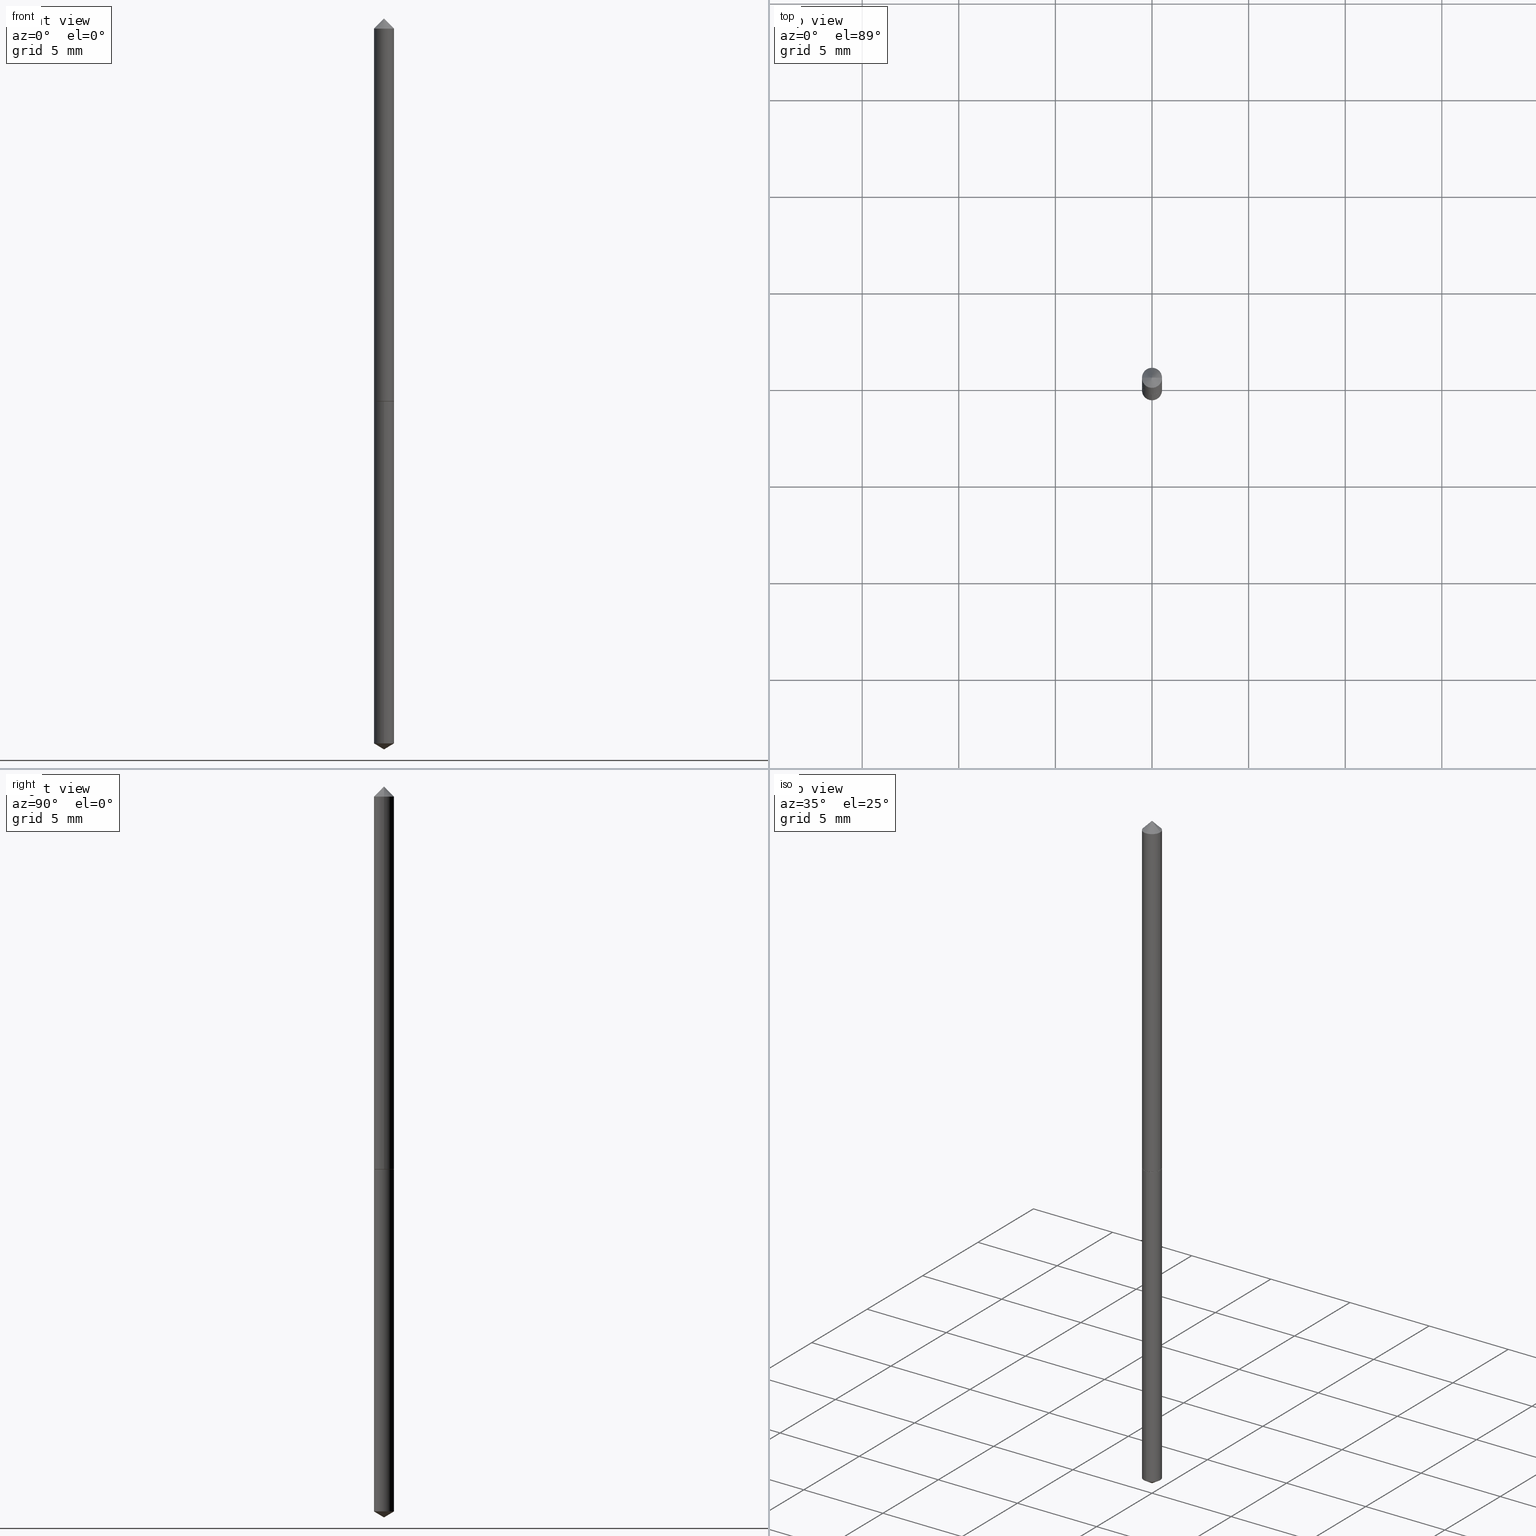
[diagram: canonical four-view strip — front | top / right | iso, engineering-drawing reading convention]
A machine part, canonical four-view strip (front | top / right | iso — engineering-drawing reading convention). The complete STEP part file that produces these views, byte-faithful:
ISO-10303-21;
HEADER;
FILE_DESCRIPTION (( 'STEP AP203' ),
    '1' );
FILE_NAME ('51059.STEP',
    '2024-04-22T18:20:51',
    ( '' ),
    ( '' ),
    'SwSTEP 2.0',
    'SolidWorks 2023',
    '' );
FILE_SCHEMA (( 'CONFIG_CONTROL_DESIGN' ));
ENDSEC;

DATA;
#1 = ORIENTED_EDGE ( 'NONE', *, *, #162, .F. ) ;
#2 = CARTESIAN_POINT ( 'NONE',  ( 0.02050000000000000433, -2.522595267314175209E-16, -0.03125000000000020123 ) ) ;
#3 = FACE_OUTER_BOUND ( 'NONE', #92, .T. ) ;
#4 = VECTOR ( 'NONE', #86, 39.37007874015748143 ) ;
#5 = DIRECTION ( 'NONE',  ( 1.000000000000000000, 0.000000000000000000, 0.000000000000000000 ) ) ;
#6 = DIRECTION ( 'NONE',  ( 6.982962677686265922E-15, 1.000000000000000000, -3.491355326581580179E-15 ) ) ;
#7 = ORIENTED_EDGE ( 'NONE', *, *, #275, .T. ) ;
#8 = APPROVAL_PERSON_ORGANIZATION ( #260, #11, #235 ) ;
#9 =( LENGTH_UNIT ( ) NAMED_UNIT ( * ) SI_UNIT ( $, .METRE. ) );
#10 = ORIENTED_EDGE ( 'NONE', *, *, #248, .T. ) ;
#11 = APPROVAL ( #181, 'UNSPECIFIED' ) ;
#12 = AXIS2_PLACEMENT_3D ( 'NONE', #42, #97, #147 ) ;
#13 = VECTOR ( 'NONE', #362, 39.37007874015748143 ) ;
#14 = CC_DESIGN_PERSON_AND_ORGANIZATION_ASSIGNMENT ( #32, #203, ( #50 ) ) ;
#15 = AXIS2_PLACEMENT_3D ( 'NONE', #267, #49, #45 ) ;
#16 = APPROVAL_PERSON_ORGANIZATION ( #337, #273, #84 ) ;
#17 = EDGE_CURVE ( 'NONE', #228, #254, #83, .T. ) ;
#18 = DIRECTION ( 'NONE',  ( 1.000000000000000000, -6.982962677686267499E-15, 0.000000000000000000 ) ) ;
#19 = CALENDAR_DATE ( 2024, 22, 4 ) ;
#20 = DIRECTION ( 'NONE',  ( -2.445468806185136597E-29, 3.491481338843145583E-15, 1.000000000000000000 ) ) ;
#21 = VECTOR ( 'NONE', #360, 39.37007874015748143 ) ;
#22 = CARTESIAN_POINT ( 'NONE',  ( 3.638142102105486561E-29, -5.194127398154383718E-15, -1.487682357309935588 ) ) ;
#23 = CC_DESIGN_APPROVAL ( #273, ( #210 ) ) ;
#24 = ADVANCED_FACE ( 'NONE', ( #282 ), #68, .T. ) ;
#25 = CARTESIAN_POINT ( 'NONE',  ( -1.431507348925320587E-16, -0.02050000000000519809, -1.487682357309935588 ) ) ;
#26 = VERTEX_POINT ( 'NONE', #182 ) ;
#27 = CARTESIAN_POINT ( 'NONE',  ( -0.02050000000000000433, 3.404194305371951064E-17, -0.03125000000000020123 ) ) ;
#28 = APPLICATION_PROTOCOL_DEFINITION ( 'international standard', 'config_control_design', 1994, #264 ) ;
#29 = LOCAL_TIME ( 14, 20, 51.00000000000000000, #34 ) ;
#30 = PRODUCT_DEFINITION_SHAPE ( 'NONE', 'NONE',  #210 ) ;
#31 = ORIENTED_EDGE ( 'NONE', *, *, #220, .F. ) ;
#32 = PERSON_AND_ORGANIZATION ( #287, #133 ) ;
#33 = CARTESIAN_POINT ( 'NONE',  ( 1.456612608308398713E-16, 0.02049999999999723918, -0.7910000000000002585 ) ) ;
#34 = COORDINATED_UNIVERSAL_TIME_OFFSET ( 5, 0, .BEHIND. ) ;
#35 = AXIS2_PLACEMENT_3D ( 'NONE', #77, #191, #301 ) ;
#36 = EDGE_LOOP ( 'NONE', ( #10, #342, #1, #114 ) ) ;
#37 = ORIENTED_EDGE ( 'NONE', *, *, #150, .F. ) ;
#38 = CC_DESIGN_SECURITY_CLASSIFICATION ( #126, ( #50 ) ) ;
#39 = DIRECTION ( 'NONE',  ( 1.000000000000000000, -6.982962677686263555E-15, 0.000000000000000000 ) ) ;
#40 = CARTESIAN_POINT ( 'NONE',  ( -9.261349818561514846E-28, 1.322178014518137871E-13, 37.87007874015748143 ) ) ;
#41 = APPLICATION_CONTEXT ( 'configuration controlled 3d designs of mechanical parts and assemblies' ) ;
#42 = CARTESIAN_POINT ( 'NONE',  ( 3.638142102105486561E-29, -5.194127398154383718E-15, -1.487682357309935588 ) ) ;
#43 = EDGE_CURVE ( 'NONE', #26, #319, #166, .T. ) ;
#44 = CC_DESIGN_APPROVAL ( #11, ( #126 ) ) ;
#45 = DIRECTION ( 'NONE',  ( 1.000000000000000000, -6.982962677686276966E-15, 0.000000000000000000 ) ) ;
#46 = DIRECTION ( 'NONE',  ( -2.445556800077080813E-29, 3.491355326581580179E-15, 1.000000000000000000 ) ) ;
#47 = APPROVAL_DATE_TIME ( #231, #11 ) ;
#48 = CARTESIAN_POINT ( 'NONE',  ( 7.642090019328601786E-31, -1.091087918388490144E-16, -0.03125000000000020123 ) ) ;
#49 = DIRECTION ( 'NONE',  ( -2.445468806185136597E-29, 3.491481338843145583E-15, 1.000000000000000000 ) ) ;
#50 = PRODUCT_DEFINITION_FORMATION_WITH_SPECIFIED_SOURCE ( 'ANY', '', #308, .NOT_KNOWN. ) ;
#51 = ORIENTED_EDGE ( 'NONE', *, *, #237, .F. ) ;
#52 = CARTESIAN_POINT ( 'NONE',  ( 1.456612608308570290E-16, 0.02049999999999723918, -0.7910000000000002585 ) ) ;
#53 = PERSON_AND_ORGANIZATION_ROLE ( 'design_owner' ) ;
#54 = PERSON_AND_ORGANIZATION ( #287, #133 ) ;
#55 = AXIS2_PLACEMENT_3D ( 'NONE', #40, #65, #314 ) ;
#56 = AXIS2_PLACEMENT_3D ( 'NONE', #276, #332, #5 ) ;
#57 = ORIENTED_EDGE ( 'NONE', *, *, #134, .F. ) ;
#58 = PERSON_AND_ORGANIZATION ( #287, #133 ) ;
#59 = EDGE_CURVE ( 'NONE', #230, #143, #349, .T. ) ;
#60 = CYLINDRICAL_SURFACE ( 'NONE', #204, 0.02050000000000005290 ) ;
#61 = COORDINATED_UNIVERSAL_TIME_OFFSET ( 5, 0, .BEHIND. ) ;
#62 = DIRECTION ( 'NONE',  ( -2.445556800077080813E-29, 3.491355326581580179E-15, 1.000000000000000000 ) ) ;
#63 = VERTEX_POINT ( 'NONE', #240 ) ;
#64 = ORIENTED_EDGE ( 'NONE', *, *, #363, .F. ) ;
#65 = DIRECTION ( 'NONE',  ( -2.445556800077080813E-29, 3.491355326581580179E-15, 1.000000000000000000 ) ) ;
#66 = ADVANCED_FACE ( 'NONE', ( #357 ), #322, .T. ) ;
#67 = PERSON_AND_ORGANIZATION ( #287, #133 ) ;
#68 = CYLINDRICAL_SURFACE ( 'NONE', #223, 0.02050000000000000086 ) ;
#69 = CARTESIAN_POINT ( 'NONE',  ( 1.934365825692443391E-29, -2.761761739024928692E-15, -0.7910000000000001474 ) ) ;
#70 = AXIS2_PLACEMENT_3D ( 'NONE', #268, #245, #221 ) ;
#71 = PLANE ( 'NONE',  #324 ) ;
#72 = LINE ( 'NONE', #215, #98 ) ;
#73 = DIRECTION ( 'NONE',  ( -2.445556800077080813E-29, 3.491355326581580179E-15, 1.000000000000000000 ) ) ;
#74 = ORIENTED_EDGE ( 'NONE', *, *, #275, .F. ) ;
#75 = AXIS2_PLACEMENT_3D ( 'NONE', #306, #280, #175 ) ;
#76 = ORIENTED_EDGE ( 'NONE', *, *, #325, .F. ) ;
#77 = CARTESIAN_POINT ( 'NONE',  ( 1.934365825692443391E-29, -2.761761739024928692E-15, -0.7910000000000001474 ) ) ;
#78 = CC_DESIGN_DATE_AND_TIME_ASSIGNMENT ( #303, #173, ( #210 ) ) ;
#79 = VERTEX_POINT ( 'NONE', #333 ) ;
#80 = ADVANCED_FACE ( 'NONE', ( #335 ), #60, .T. ) ;
#81 = EDGE_LOOP ( 'NONE', ( #74, #226, #95 ) ) ;
#82 = APPROVAL_DATE_TIME ( #140, #229 ) ;
#83 = CIRCLE ( 'NONE', #75, 0.02000000000000005940 ) ;
#84 = APPROVAL_ROLE ( '' ) ;
#85 = EDGE_LOOP ( 'NONE', ( #189, #358 ) ) ;
#86 = DIRECTION ( 'NONE',  ( -0.7071067811866441621, 7.493145998870704414E-15, 0.7071067811864508723 ) ) ;
#87 = CARTESIAN_POINT ( 'NONE',  ( -0.02050000000000005290, 1.456612608308209140E-16, -1.008381693502258247E-30 ) ) ;
#88 = ADVANCED_BREP_SHAPE_REPRESENTATION ( '51059', ( #209, #211, #56 ), #201 ) ;
#89 = CIRCLE ( 'NONE', #343, 0.02050000000000000086 ) ;
#90 = AXIS2_PLACEMENT_3D ( 'NONE', #326, #20, #271 ) ;
#91 = ORIENTED_EDGE ( 'NONE', *, *, #115, .F. ) ;
#92 = EDGE_LOOP ( 'NONE', ( #64, #156, #192, #51 ) ) ;
#93 = DIRECTION ( 'NONE',  ( -2.445468806185136597E-29, 3.491481338843145583E-15, 1.000000000000000000 ) ) ;
#94 = ADVANCED_FACE ( 'NONE', ( #259 ), #168, .T. ) ;
#95 = ORIENTED_EDGE ( 'NONE', *, *, #256, .T. ) ;
#96 = DIRECTION ( 'NONE',  ( 1.000000000000000000, -6.982962677686276966E-15, 0.000000000000000000 ) ) ;
#97 = DIRECTION ( 'NONE',  ( -2.445556800077080813E-29, 3.491355326581580179E-15, 1.000000000000000000 ) ) ;
#98 = VECTOR ( 'NONE', #323, 39.37007874015748143 ) ;
#99 = ORIENTED_EDGE ( 'NONE', *, *, #363, .T. ) ;
#100 = DIRECTION ( 'NONE',  ( 0.7071067811866441621, -2.468850131083269169E-15, 0.7071067811864508723 ) ) ;
#101 = CARTESIAN_POINT ( 'NONE',  ( 5.706722458559400558E-29, 2.640467668446126357E-15, -0.7910000000000001474 ) ) ;
#102 = DIRECTION ( 'NONE',  ( 1.000000000000000000, -6.982962677686276966E-15, 0.000000000000000000 ) ) ;
#103 = DIRECTION ( 'NONE',  ( 2.445468806185136597E-29, -3.491481338843145583E-15, -1.000000000000000000 ) ) ;
#104 = ORIENTED_EDGE ( 'NONE', *, *, #115, .T. ) ;
#105 = FACE_OUTER_BOUND ( 'NONE', #120, .T. ) ;
#106 = ORIENTED_EDGE ( 'NONE', *, *, #118, .F. ) ;
#107 = APPROVAL_DATE_TIME ( #281, #273 ) ;
#108 = ADVANCED_FACE ( 'NONE', ( #261 ), #200, .T. ) ;
#109 = FACE_OUTER_BOUND ( 'NONE', #85, .T. ) ;
#110 = APPLICATION_PROTOCOL_DEFINITION ( 'international standard', 'config_control_design', 1994, #41 ) ;
#111 = LOCAL_TIME ( 14, 20, 51.00000000000000000, #117 ) ;
#112 = DIRECTION ( 'NONE',  ( 1.000000000000000000, -6.982962677686265922E-15, 4.876176775795935793E-29 ) ) ;
#113 = DIRECTION ( 'NONE',  ( 1.000000000000000000, -6.982962677686265922E-15, 4.876176775795935793E-29 ) ) ;
#114 = ORIENTED_EDGE ( 'NONE', *, *, #339, .F. ) ;
#115 = EDGE_CURVE ( 'NONE', #136, #26, #187, .T. ) ;
#116 = ORIENTED_EDGE ( 'NONE', *, *, #59, .F. ) ;
#117 = COORDINATED_UNIVERSAL_TIME_OFFSET ( 5, 0, .BEHIND. ) ;
#118 = EDGE_CURVE ( 'NONE', #254, #228, #288, .T. ) ;
#119 = SHAPE_DEFINITION_REPRESENTATION ( #30, #88 ) ;
#120 = EDGE_LOOP ( 'NONE', ( #116, #279, #179, #233 ) ) ;
#121 = CLOSED_SHELL ( 'NONE', ( #144, #80, #263, #284, #213, #345, #94 ) ) ;
#122 = DATE_AND_TIME ( #295, #111 ) ;
#123 = FACE_OUTER_BOUND ( 'NONE', #36, .T. ) ;
#124 = SECURITY_CLASSIFICATION_LEVEL ( 'unclassified' ) ;
#125 = DIRECTION ( 'NONE',  ( -2.445468806185136597E-29, 3.491481338843145583E-15, 1.000000000000000000 ) ) ;
#126 = SECURITY_CLASSIFICATION ( '', '', #124 ) ;
#127 = DIRECTION ( 'NONE',  ( -2.445468806185136597E-29, 3.491481338843145583E-15, 1.000000000000000000 ) ) ;
#128 = DIRECTION ( 'NONE',  ( -2.445556800077080813E-29, 3.491355326581580179E-15, 1.000000000000000000 ) ) ;
#129 = DIRECTION ( 'NONE',  ( -2.445468806185136877E-29, 3.491481338843145188E-15, 1.000000000000000000 ) ) ;
#130 = EDGE_LOOP ( 'NONE', ( #202, #329, #31, #163 ) ) ;
#131 = DIRECTION ( 'NONE',  ( 2.445556800077080533E-29, -3.491355326581580179E-15, -1.000000000000000000 ) ) ;
#132 = EDGE_LOOP ( 'NONE', ( #106, #247 ) ) ;
#133 = ORGANIZATION ( 'UNSPECIFIED', 'UNSPECIFIED', '' ) ;
#134 = EDGE_CURVE ( 'NONE', #26, #266, #304, .T. ) ;
#135 = PLANE ( 'NONE',  #359 ) ;
#136 = VERTEX_POINT ( 'NONE', #195 ) ;
#137 = DIRECTION ( 'NONE',  ( 6.090539988449838389E-15, 0.8571673007021223256, 0.5150380749100373912 ) ) ;
#138 = LENGTH_MEASURE_WITH_UNIT ( LENGTH_MEASURE( 0.02539999999999999897 ), #9 );
#139 = ORIENTED_EDGE ( 'NONE', *, *, #339, .T. ) ;
#140 = DATE_AND_TIME ( #222, #29 ) ;
#141 = LINE ( 'NONE', #340, #243 ) ;
#142 = ADVANCED_FACE ( 'NONE', ( #109 ), #135, .F. ) ;
#143 = VERTEX_POINT ( 'NONE', #294 ) ;
#144 = ADVANCED_FACE ( 'NONE', ( #172 ), #285, .T. ) ;
#145 = ORIENTED_EDGE ( 'NONE', *, *, #118, .T. ) ;
#146 = CIRCLE ( 'NONE', #305, 0.02050000000000009454 ) ;
#147 = DIRECTION ( 'NONE',  ( -6.982962677686266711E-15, -1.000000000000000000, 0.000000000000000000 ) ) ;
#148 = DIRECTION ( 'NONE',  ( -2.445468806185136597E-29, 3.491481338843145583E-15, 1.000000000000000000 ) ) ;
#149 = VERTEX_POINT ( 'NONE', #161 ) ;
#150 = EDGE_CURVE ( 'NONE', #136, #266, #158, .T. ) ;
#151 = ORIENTED_EDGE ( 'NONE', *, *, #134, .T. ) ;
#152 = DIRECTION ( 'NONE',  ( -2.445556800077080813E-29, 3.491355326581580179E-15, 1.000000000000000000 ) ) ;
#153 = EDGE_LOOP ( 'NONE', ( #37, #104, #348 ) ) ;
#154 = VECTOR ( 'NONE', #137, 39.37007874015748854 ) ;
#155 = CARTESIAN_POINT ( 'NONE',  ( -0.02000000000000005940, -2.617003964698796539E-15, -0.7909999999999999254 ) ) ;
#156 = ORIENTED_EDGE ( 'NONE', *, *, #17, .T. ) ;
#157 = DIRECTION ( 'NONE',  ( -6.982962677686266711E-15, -1.000000000000000000, 6.663043886986007407E-15 ) ) ;
#158 = LINE ( 'NONE', #297, #21 ) ;
#159 = CARTESIAN_POINT ( 'NONE',  ( 3.668336420790877591E-29, -5.237032989872371058E-15, -1.500000000000000222 ) ) ;
#160 = CIRCLE ( 'NONE', #361, 0.02050000000000000433 ) ;
#161 = CARTESIAN_POINT ( 'NONE',  ( -1.431507348925491178E-16, -0.02050000000000276254, -0.7909999999999999254 ) ) ;
#162 = EDGE_CURVE ( 'NONE', #149, #319, #89, .T. ) ;
#163 = ORIENTED_EDGE ( 'NONE', *, *, #177, .F. ) ;
#164 = LINE ( 'NONE', #27, #250 ) ;
#165 = DIRECTION ( 'NONE',  ( -2.445556800077080813E-29, 3.491355326581580179E-15, 1.000000000000000000 ) ) ;
#166 = LINE ( 'NONE', #33, #238 ) ;
#167 = APPROVAL_STATUS ( 'not_yet_approved' ) ;
#168 = CONICAL_SURFACE ( 'NONE', #317, 0.02050000000000000433, 0.7853981633974450594 ) ;
#169 = APPROVAL_PERSON_ORGANIZATION ( #54, #229, #278 ) ;
#170 = APPROVAL_STATUS ( 'not_yet_approved' ) ;
#171 = PERSON_AND_ORGANIZATION_ROLE ( 'creator' ) ;
#172 = FACE_OUTER_BOUND ( 'NONE', #296, .T. ) ;
#173 = DATE_TIME_ROLE ( 'creation_date' ) ;
#174 = CLOSED_SHELL ( 'NONE', ( #272, #66, #108, #24, #142 ) ) ;
#175 = DIRECTION ( 'NONE',  ( 1.000000000000000000, -6.982962677686263555E-15, 0.000000000000000000 ) ) ;
#176 = LOCAL_TIME ( 14, 20, 51.00000000000000000, #352 ) ;
#177 = EDGE_CURVE ( 'NONE', #63, #292, #186, .T. ) ;
#178 = DIRECTION ( 'NONE',  ( -2.445468806185136597E-29, 3.491481338843145583E-15, 1.000000000000000000 ) ) ;
#179 = ORIENTED_EDGE ( 'NONE', *, *, #177, .T. ) ;
#180 = ORIENTED_EDGE ( 'NONE', *, *, #316, .F. ) ;
#181 = APPROVAL_STATUS ( 'not_yet_approved' ) ;
#182 = CARTESIAN_POINT ( 'NONE',  ( 1.456612608308569058E-16, 0.02049999999999480710, -1.487682357309935588 ) ) ;
#183 = CARTESIAN_POINT ( 'NONE',  ( 0.02050000000000005290, -1.431507348925688147E-16, 9.996162390381693739E-31 ) ) ;
#184 = LOCAL_TIME ( 14, 20, 51.00000000000000000, #244 ) ;
#185 = DIRECTION ( 'NONE',  ( -2.445468806185136597E-29, 3.491481338843145583E-15, 1.000000000000000000 ) ) ;
#186 = LINE ( 'NONE', #183, #249 ) ;
#187 = LINE ( 'NONE', #159, #154 ) ;
#188 = DIRECTION ( 'NONE',  ( -2.445468806185136597E-29, 3.491481338843145583E-15, 1.000000000000000000 ) ) ;
#189 = ORIENTED_EDGE ( 'NONE', *, *, #162, .T. ) ;
#190 = CONICAL_SURFACE ( 'NONE', #15, 0.02050000000000009454, 0.7853981633975849475 ) ;
#191 = DIRECTION ( 'NONE',  ( -2.445556800077080813E-29, 3.491355326581580179E-15, 1.000000000000000000 ) ) ;
#192 = ORIENTED_EDGE ( 'NONE', *, *, #199, .T. ) ;
#193 = ORIENTED_EDGE ( 'NONE', *, *, #199, .F. ) ;
#194 = PERSON_AND_ORGANIZATION_ROLE ( 'creator' ) ;
#195 = CARTESIAN_POINT ( 'NONE',  ( 3.668335200115621219E-29, -5.237032989872371058E-15, -1.500000000000000222 ) ) ;
#196 = CIRCLE ( 'NONE', #35, 0.02050000000000000086 ) ;
#197 = CALENDAR_DATE ( 2024, 22, 4 ) ;
#198 =( CONVERSION_BASED_UNIT ( 'INCH', #138 ) LENGTH_UNIT ( ) NAMED_UNIT ( #269 ) );
#199 = EDGE_CURVE ( 'NONE', #254, #63, #290, .T. ) ;
#200 = CONICAL_SURFACE ( 'NONE', #55, 65.52281426577081902, 1.029744258676670521 ) ;
#201 =( GEOMETRIC_REPRESENTATION_CONTEXT ( 3 ) GLOBAL_UNCERTAINTY_ASSIGNED_CONTEXT ( ( #283 ) ) GLOBAL_UNIT_ASSIGNED_CONTEXT ( ( #198, #334, #311 ) ) REPRESENTATION_CONTEXT ( 'NONE', 'WORKASPACE' ) );
#202 = ORIENTED_EDGE ( 'NONE', *, *, #307, .T. ) ;
#203 = PERSON_AND_ORGANIZATION_ROLE ( 'design_supplier' ) ;
#204 = AXIS2_PLACEMENT_3D ( 'NONE', #312, #178, #113 ) ;
#205 = EDGE_LOOP ( 'NONE', ( #145, #99, #289, #193 ) ) ;
#206 = AXIS2_PLACEMENT_3D ( 'NONE', #355, #128, #208 ) ;
#207 = CARTESIAN_POINT ( 'NONE',  ( 1.934365825692443391E-29, -2.761761739024928692E-15, -0.7910000000000001474 ) ) ;
#208 = DIRECTION ( 'NONE',  ( -6.982962677686266711E-15, -1.000000000000000000, 6.663043886986007407E-15 ) ) ;
#209 = MANIFOLD_SOLID_BREP ( 'Body-Move/Copy2[1]', #174 ) ;
#210 = PRODUCT_DEFINITION ( 'UNKNOWN', '', #50, #346 ) ;
#211 = MANIFOLD_SOLID_BREP ( 'Body-Move/Copy2[2]', #121 ) ;
#212 = CARTESIAN_POINT ( 'NONE',  ( 0.02000000000000005940, -2.901420992578653711E-15, -0.7909999999999999254 ) ) ;
#213 = ADVANCED_FACE ( 'NONE', ( #3 ), #190, .T. ) ;
#214 = DIRECTION ( 'NONE',  ( 1.000000000000000000, -6.982962677686265922E-15, 4.876176775795935793E-29 ) ) ;
#215 = CARTESIAN_POINT ( 'NONE',  ( 0.02050000000000000433, -2.497490007931654215E-16, -0.03125000000000020123 ) ) ;
#216 = CC_DESIGN_PERSON_AND_ORGANIZATION_ASSIGNMENT ( #67, #315, ( #126 ) ) ;
#217 = AXIS2_PLACEMENT_3D ( 'NONE', #258, #148, #112 ) ;
#218 = CARTESIAN_POINT ( 'NONE',  ( -0.02050000000000009454, -2.614354737524685732E-15, -0.7905000000000000915 ) ) ;
#219 = CALENDAR_DATE ( 2024, 22, 4 ) ;
#220 = EDGE_CURVE ( 'NONE', #292, #143, #351, .T. ) ;
#221 = DIRECTION ( 'NONE',  ( -6.982962677686265922E-15, -1.000000000000000000, 3.468864327941467996E-15 ) ) ;
#222 = CALENDAR_DATE ( 2024, 22, 4 ) ;
#223 = AXIS2_PLACEMENT_3D ( 'NONE', #207, #152, #353 ) ;
#224 = AXIS2_PLACEMENT_3D ( 'NONE', #22, #73, #241 ) ;
#225 = MECHANICAL_CONTEXT ( 'NONE', #41, 'mechanical' ) ;
#226 = ORIENTED_EDGE ( 'NONE', *, *, #325, .T. ) ;
#227 = LINE ( 'NONE', #218, #4 ) ;
#228 = VERTEX_POINT ( 'NONE', #155 ) ;
#229 = APPROVAL ( #170, 'UNSPECIFIED' ) ;
#230 = VERTEX_POINT ( 'NONE', #270 ) ;
#231 = DATE_AND_TIME ( #19, #176 ) ;
#232 = DATE_TIME_ROLE ( 'classification_date' ) ;
#233 = ORIENTED_EDGE ( 'NONE', *, *, #256, .F. ) ;
#234 = CYLINDRICAL_SURFACE ( 'NONE', #206, 0.02050000000000000086 ) ;
#235 = APPROVAL_ROLE ( '' ) ;
#236 = CARTESIAN_POINT ( 'NONE',  ( 0.02050000000000009454, -2.903166733248076003E-15, -0.7905000000000000915 ) ) ;
#237 = EDGE_CURVE ( 'NONE', #230, #63, #344, .T. ) ;
#238 = VECTOR ( 'NONE', #165, 39.37007874015748143 ) ;
#239 = CARTESIAN_POINT ( 'NONE',  ( 1.933143091289350590E-29, -2.760015998355506794E-15, -0.7905000000000000915 ) ) ;
#240 = CARTESIAN_POINT ( 'NONE',  ( 0.02050000000000009454, -2.903166733248076003E-15, -0.7905000000000000915 ) ) ;
#241 = DIRECTION ( 'NONE',  ( -6.982962677686266711E-15, -1.000000000000000000, 0.000000000000000000 ) ) ;
#242 = DIRECTION ( 'NONE',  ( -0.7071067811865452413, 2.468850131082233000E-15, -0.7071067811865497932 ) ) ;
#243 = VECTOR ( 'NONE', #62, 39.37007874015748143 ) ;
#244 = COORDINATED_UNIVERSAL_TIME_OFFSET ( 5, 0, .BEHIND. ) ;
#245 = DIRECTION ( 'NONE',  ( -2.445556800077080813E-29, 3.491355326581580179E-15, 1.000000000000000000 ) ) ;
#246 = ORIENTED_EDGE ( 'NONE', *, *, #43, .F. ) ;
#247 = ORIENTED_EDGE ( 'NONE', *, *, #17, .F. ) ;
#248 = EDGE_CURVE ( 'NONE', #266, #26, #291, .T. ) ;
#249 = VECTOR ( 'NONE', #129, 39.37007874015748143 ) ;
#250 = VECTOR ( 'NONE', #242, 39.37007874015748143 ) ;
#251 = CYLINDRICAL_SURFACE ( 'NONE', #217, 0.02050000000000005290 ) ;
#252 = CC_DESIGN_DATE_AND_TIME_ASSIGNMENT ( #122, #232, ( #126 ) ) ;
#253 = EDGE_LOOP ( 'NONE', ( #246, #151, #139, #180 ) ) ;
#254 = VERTEX_POINT ( 'NONE', #212 ) ;
#255 = AXIS2_PLACEMENT_3D ( 'NONE', #310, #93, #39 ) ;
#256 = EDGE_CURVE ( 'NONE', #143, #292, #160, .T. ) ;
#257 = AXIS2_PLACEMENT_3D ( 'NONE', #239, #188, #102 ) ;
#258 = CARTESIAN_POINT ( 'NONE',  ( 0.000000000000000000, 0.000000000000000000, 0.000000000000000000 ) ) ;
#259 = FACE_OUTER_BOUND ( 'NONE', #81, .T. ) ;
#260 = PERSON_AND_ORGANIZATION ( #287, #133 ) ;
#261 = FACE_OUTER_BOUND ( 'NONE', #338, .T. ) ;
#262 = ORIENTED_EDGE ( 'NONE', *, *, #220, .T. ) ;
#263 = ADVANCED_FACE ( 'NONE', ( #328 ), #277, .T. ) ;
#264 = APPLICATION_CONTEXT ( 'configuration controlled 3d designs of mechanical parts and assemblies' ) ;
#265 = CARTESIAN_POINT ( 'NONE',  ( 1.933143091289350590E-29, -2.760015998355506794E-15, -0.7905000000000000915 ) ) ;
#266 = VERTEX_POINT ( 'NONE', #25 ) ;
#267 = CARTESIAN_POINT ( 'NONE',  ( 1.933143091289350590E-29, -2.760015998355506794E-15, -0.7905000000000000915 ) ) ;
#268 = CARTESIAN_POINT ( 'NONE',  ( -9.261349818561514846E-28, 1.322178014518137871E-13, 37.87007874015748143 ) ) ;
#269 = DIMENSIONAL_EXPONENTS ( 1.000000000000000000, 0.000000000000000000, 0.000000000000000000, 0.000000000000000000, 0.000000000000000000, 0.000000000000000000, 0.000000000000000000 ) ;
#270 = CARTESIAN_POINT ( 'NONE',  ( -0.02050000000000009454, -2.614354737524685732E-15, -0.7905000000000000915 ) ) ;
#271 = DIRECTION ( 'NONE',  ( 1.000000000000000000, -6.982962677686267499E-15, 0.000000000000000000 ) ) ;
#272 = ADVANCED_FACE ( 'NONE', ( #123 ), #234, .T. ) ;
#273 = APPROVAL ( #167, 'UNSPECIFIED' ) ;
#274 = DIRECTION ( 'NONE',  ( -2.438088387897960049E-29, 3.491481338843145188E-15, 1.000000000000000000 ) ) ;
#275 = EDGE_CURVE ( 'NONE', #79, #292, #72, .T. ) ;
#276 = CARTESIAN_POINT ( 'NONE',  ( 0.000000000000000000, 0.000000000000000000, 0.000000000000000000 ) ) ;
#277 = CONICAL_SURFACE ( 'NONE', #257, 0.02050000000000009454, 0.7853981633975849475 ) ;
#278 = APPROVAL_ROLE ( '' ) ;
#279 = ORIENTED_EDGE ( 'NONE', *, *, #237, .T. ) ;
#280 = DIRECTION ( 'NONE',  ( -2.445468806185136597E-29, 3.491481338843145583E-15, 1.000000000000000000 ) ) ;
#281 = DATE_AND_TIME ( #197, #184 ) ;
#282 = FACE_OUTER_BOUND ( 'NONE', #253, .T. ) ;
#283 = UNCERTAINTY_MEASURE_WITH_UNIT (LENGTH_MEASURE( 1.000000000000000082E-05 ), #198, 'distance_accuracy_value', 'NONE');
#284 = ADVANCED_FACE ( 'NONE', ( #364 ), #71, .F. ) ;
#285 = CONICAL_SURFACE ( 'NONE', #336, 0.02050000000000000433, 0.7853981633974450594 ) ;
#286 = DIRECTION ( 'NONE',  ( 2.445468806185136597E-29, -3.491481338843145583E-15, -1.000000000000000000 ) ) ;
#287 = PERSON ( 'UNSPECIFIED', 'UNSPECIFIED', 'UNSPECIFIED', ('UNSPECIFIED'), ('UNSPECIFIED'), ('UNSPECIFIED') ) ;
#288 = CIRCLE ( 'NONE', #255, 0.02000000000000005940 ) ;
#289 = ORIENTED_EDGE ( 'NONE', *, *, #307, .F. ) ;
#290 = LINE ( 'NONE', #236, #299 ) ;
#291 = CIRCLE ( 'NONE', #224, 0.02050000000000000086 ) ;
#292 = VERTEX_POINT ( 'NONE', #2 ) ;
#293 = DIRECTION ( 'NONE',  ( 1.000000000000000000, -6.982962677686276966E-15, 0.000000000000000000 ) ) ;
#294 = CARTESIAN_POINT ( 'NONE',  ( -0.02050000000000000433, -1.288901134266355899E-15, -0.03125000000000020123 ) ) ;
#295 = CALENDAR_DATE ( 2024, 22, 4 ) ;
#296 = EDGE_LOOP ( 'NONE', ( #76, #7, #262 ) ) ;
#297 = CARTESIAN_POINT ( 'NONE',  ( 3.668195993778566077E-29, -5.237232341270166714E-15, -1.500000000000000222 ) ) ;
#298 = CARTESIAN_POINT ( 'NONE',  ( 7.642090019328601786E-31, -1.091087918388490144E-16, -0.03125000000000020123 ) ) ;
#299 = VECTOR ( 'NONE', #100, 39.37007874015748143 ) ;
#300 = CC_DESIGN_APPROVAL ( #229, ( #50 ) ) ;
#301 = DIRECTION ( 'NONE',  ( -6.982962677686266711E-15, -1.000000000000000000, 6.663043886986007407E-15 ) ) ;
#302 = PERSON_AND_ORGANIZATION ( #287, #133 ) ;
#303 = DATE_AND_TIME ( #219, #331 ) ;
#304 = CIRCLE ( 'NONE', #12, 0.02050000000000000086 ) ;
#305 = AXIS2_PLACEMENT_3D ( 'NONE', #330, #185, #293 ) ;
#306 = CARTESIAN_POINT ( 'NONE',  ( 1.934365825692443111E-29, -2.761761739024928297E-15, -0.7909999999999999254 ) ) ;
#307 = EDGE_CURVE ( 'NONE', #63, #230, #146, .T. ) ;
#308 = PRODUCT ( '51059', '51059', '', ( #225 ) ) ;
#309 = PERSON_AND_ORGANIZATION ( #287, #133 ) ;
#310 = CARTESIAN_POINT ( 'NONE',  ( 1.934365825692443111E-29, -2.761761739024928297E-15, -0.7909999999999999254 ) ) ;
#311 =( NAMED_UNIT ( * ) SI_UNIT ( $, .STERADIAN. ) SOLID_ANGLE_UNIT ( ) );
#312 = CARTESIAN_POINT ( 'NONE',  ( 0.000000000000000000, 0.000000000000000000, 0.000000000000000000 ) ) ;
#313 = CC_DESIGN_PERSON_AND_ORGANIZATION_ASSIGNMENT ( #302, #53, ( #308 ) ) ;
#314 = DIRECTION ( 'NONE',  ( -6.982962677686265922E-15, -1.000000000000000000, 3.468864327941467996E-15 ) ) ;
#315 = PERSON_AND_ORGANIZATION_ROLE ( 'classification_officer' ) ;
#316 = EDGE_CURVE ( 'NONE', #319, #149, #196, .T. ) ;
#317 = AXIS2_PLACEMENT_3D ( 'NONE', #354, #286, #347 ) ;
#318 = AXIS2_PLACEMENT_3D ( 'NONE', #265, #125, #96 ) ;
#319 = VERTEX_POINT ( 'NONE', #52 ) ;
#320 = CC_DESIGN_PERSON_AND_ORGANIZATION_ASSIGNMENT ( #58, #171, ( #50 ) ) ;
#321 = DIRECTION ( 'NONE',  ( -1.000000000000000000, 6.982962677686267499E-15, 0.000000000000000000 ) ) ;
#322 = CONICAL_SURFACE ( 'NONE', #70, 65.52281426577081902, 1.029744258676670521 ) ;
#323 = DIRECTION ( 'NONE',  ( 0.7071067811865452413, -7.319954787623248157E-15, -0.7071067811865497932 ) ) ;
#324 = AXIS2_PLACEMENT_3D ( 'NONE', #101, #274, #214 ) ;
#325 = EDGE_CURVE ( 'NONE', #79, #143, #164, .T. ) ;
#326 = CARTESIAN_POINT ( 'NONE',  ( 7.642090019328601786E-31, -1.091087918388490144E-16, -0.03125000000000020123 ) ) ;
#327 = ORIENTED_EDGE ( 'NONE', *, *, #150, .T. ) ;
#328 = FACE_OUTER_BOUND ( 'NONE', #205, .T. ) ;
#329 = ORIENTED_EDGE ( 'NONE', *, *, #59, .T. ) ;
#330 = CARTESIAN_POINT ( 'NONE',  ( 1.933143091289350590E-29, -2.760015998355506794E-15, -0.7905000000000000915 ) ) ;
#331 = LOCAL_TIME ( 14, 20, 51.00000000000000000, #61 ) ;
#332 = DIRECTION ( 'NONE',  ( 0.000000000000000000, 0.000000000000000000, 1.000000000000000000 ) ) ;
#333 = CARTESIAN_POINT ( 'NONE',  ( 2.628878966649037970E-31, -3.753342439256404620E-17, -0.01075000000000006679 ) ) ;
#334 =( NAMED_UNIT ( * ) PLANE_ANGLE_UNIT ( ) SI_UNIT ( $, .RADIAN. ) );
#335 = FACE_OUTER_BOUND ( 'NONE', #130, .T. ) ;
#336 = AXIS2_PLACEMENT_3D ( 'NONE', #298, #103, #321 ) ;
#337 = PERSON_AND_ORGANIZATION ( #287, #133 ) ;
#338 = EDGE_LOOP ( 'NONE', ( #91, #327, #57 ) ) ;
#339 = EDGE_CURVE ( 'NONE', #266, #149, #141, .T. ) ;
#340 = CARTESIAN_POINT ( 'NONE',  ( -1.431507348925491178E-16, -0.02050000000000276254, -0.7909999999999999254 ) ) ;
#341 = CC_DESIGN_PERSON_AND_ORGANIZATION_ASSIGNMENT ( #309, #194, ( #210 ) ) ;
#342 = ORIENTED_EDGE ( 'NONE', *, *, #43, .T. ) ;
#343 = AXIS2_PLACEMENT_3D ( 'NONE', #69, #46, #157 ) ;
#344 = CIRCLE ( 'NONE', #318, 0.02050000000000009454 ) ;
#345 = ADVANCED_FACE ( 'NONE', ( #105 ), #251, .T. ) ;
#346 = DESIGN_CONTEXT ( 'detailed design', #264, 'design' ) ;
#347 = DIRECTION ( 'NONE',  ( -1.000000000000000000, 6.982962677686267499E-15, 0.000000000000000000 ) ) ;
#348 = ORIENTED_EDGE ( 'NONE', *, *, #248, .F. ) ;
#349 = LINE ( 'NONE', #87, #13 ) ;
#350 = PRODUCT_RELATED_PRODUCT_CATEGORY ( 'detail', '', ( #308 ) ) ;
#351 = CIRCLE ( 'NONE', #90, 0.02050000000000000433 ) ;
#352 = COORDINATED_UNIVERSAL_TIME_OFFSET ( 5, 0, .BEHIND. ) ;
#353 = DIRECTION ( 'NONE',  ( -6.982962677686266711E-15, -1.000000000000000000, 6.663043886986007407E-15 ) ) ;
#354 = CARTESIAN_POINT ( 'NONE',  ( 7.642090019328601786E-31, -1.091087918388490144E-16, -0.03125000000000020123 ) ) ;
#355 = CARTESIAN_POINT ( 'NONE',  ( 1.934365825692443391E-29, -2.761761739024928692E-15, -0.7910000000000001474 ) ) ;
#356 = CARTESIAN_POINT ( 'NONE',  ( 1.934365825692443391E-29, -2.761761739024928692E-15, -0.7910000000000001474 ) ) ;
#357 = FACE_OUTER_BOUND ( 'NONE', #153, .T. ) ;
#358 = ORIENTED_EDGE ( 'NONE', *, *, #316, .T. ) ;
#359 = AXIS2_PLACEMENT_3D ( 'NONE', #356, #131, #6 ) ;
#360 = DIRECTION ( 'NONE',  ( -5.985567269336001233E-15, -0.8571673007021188839, 0.5150380749100433864 ) ) ;
#361 = AXIS2_PLACEMENT_3D ( 'NONE', #48, #127, #18 ) ;
#362 = DIRECTION ( 'NONE',  ( -2.445468806185136877E-29, 3.491481338843145188E-15, 1.000000000000000000 ) ) ;
#363 = EDGE_CURVE ( 'NONE', #228, #230, #227, .T. ) ;
#364 = FACE_OUTER_BOUND ( 'NONE', #132, .T. ) ;
ENDSEC;
END-ISO-10303-21;
